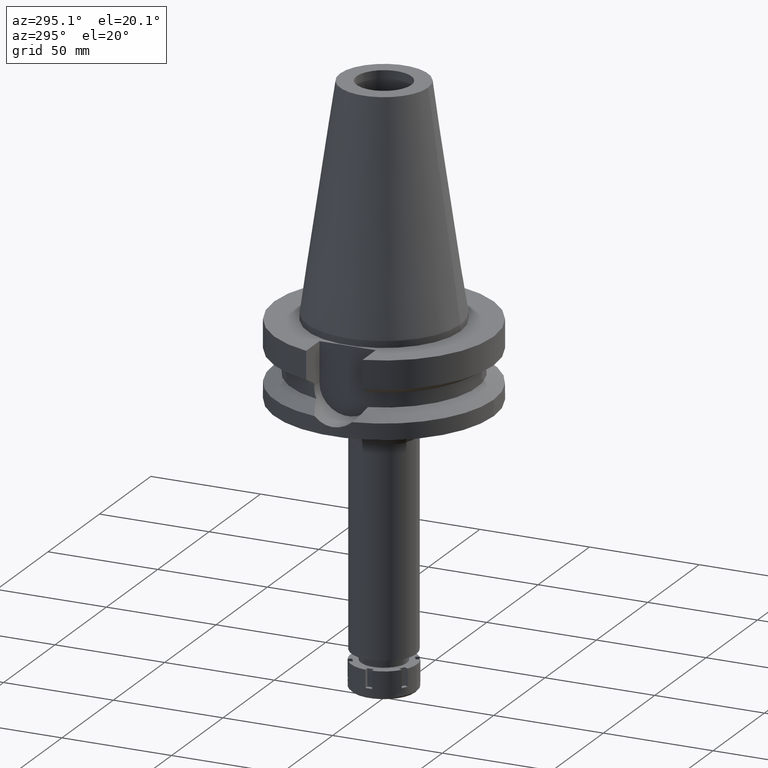
[diagram: clean part render]
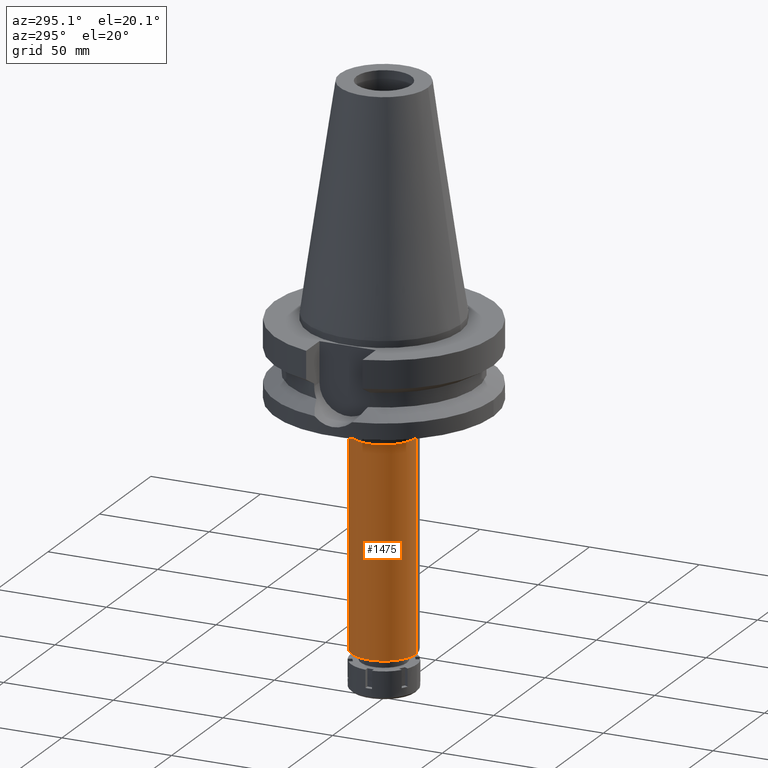
[diagram: same view with one face highlighted and labeled with its STEP entity id]
A machine part, auxiliary view. The second image highlights one B-rep face of the part: STEP entity #1475.
In plain terms, the highlighted cylindrical surface (edge-blend (fillet) strip) has radius 14.75 mm, axis along (0, 0, -1).
Its self-contained STEP definition (entity closure, byte-faithful):
#39 = CIRCLE ( 'NONE', #2115, 14.75000000000000000 ) ;
#101 = AXIS2_PLACEMENT_3D ( 'NONE', #452, #692, #1537 ) ;
#239 = LINE ( 'NONE', #2510, #3024 ) ;
#293 = DIRECTION ( 'NONE',  ( 0.0000000000000000000, 0.0000000000000000000, -1.000000000000000000 ) ) ;
#336 = AXIS2_PLACEMENT_3D ( 'NONE', #1958, #2766, #3091 ) ;
#451 = VECTOR ( 'NONE', #2633, 1000.000000000000000 ) ;
#452 = CARTESIAN_POINT ( 'NONE',  ( 0.0000000000000000000, 0.0000000000000000000, -53.00000000000000000 ) ) ;
#621 = LINE ( 'NONE', #1769, #451 ) ;
#623 = CIRCLE ( 'NONE', #101, 14.75000000000000000 ) ;
#692 = DIRECTION ( 'NONE',  ( 0.0000000000000000000, 0.0000000000000000000, -1.000000000000000000 ) ) ;
#746 = VERTEX_POINT ( 'NONE', #855 ) ;
#855 = CARTESIAN_POINT ( 'NONE',  ( 0.0000000000000000000, 14.75000000000000000, -53.00000000000000000 ) ) ;
#939 = VERTEX_POINT ( 'NONE', #1539 ) ;
#1069 = CYLINDRICAL_SURFACE ( 'NONE', #336, 14.75000000000000000 ) ;
#1475 = ADVANCED_FACE ( 'NONE', ( #2525 ), #1069, .T. ) ;
#1493 = DIRECTION ( 'NONE',  ( 0.0000000000000000000, 0.0000000000000000000, 1.000000000000000000 ) ) ;
#1537 = DIRECTION ( 'NONE',  ( 0.0000000000000000000, -1.000000000000000000, 0.0000000000000000000 ) ) ;
#1539 = CARTESIAN_POINT ( 'NONE',  ( 0.0000000000000000000, -14.75000000000000000, -148.0000000000000000 ) ) ;
#1671 = VERTEX_POINT ( 'NONE', #2987 ) ;
#1769 = CARTESIAN_POINT ( 'NONE',  ( 0.0000000000000000000, 14.75000000000000000, -53.00000000000000000 ) ) ;
#1958 = CARTESIAN_POINT ( 'NONE',  ( 0.0000000000000000000, 2.630418859888999601E-14, 114.7900000000000063 ) ) ;
#2115 = AXIS2_PLACEMENT_3D ( 'NONE', #2310, #1493, #3141 ) ;
#2156 = EDGE_LOOP ( 'NONE', ( #3233, #2371, #2714, #2471 ) ) ;
#2179 = CARTESIAN_POINT ( 'NONE',  ( 0.0000000000000000000, 14.75000000000000000, -148.0000000000000000 ) ) ;
#2232 = EDGE_CURVE ( 'NONE', #746, #3222, #621, .T. ) ;
#2310 = CARTESIAN_POINT ( 'NONE',  ( 0.0000000000000000000, 2.630418859888999601E-14, -148.0000000000000000 ) ) ;
#2371 = ORIENTED_EDGE ( 'NONE', *, *, #2762, .F. ) ;
#2471 = ORIENTED_EDGE ( 'NONE', *, *, #2232, .T. ) ;
#2510 = CARTESIAN_POINT ( 'NONE',  ( 0.0000000000000000000, -14.75000000000000000, -53.00000000000000000 ) ) ;
#2525 = FACE_OUTER_BOUND ( 'NONE', #2156, .T. ) ;
#2604 = EDGE_CURVE ( 'NONE', #1671, #746, #623, .T. ) ;
#2633 = DIRECTION ( 'NONE',  ( 0.0000000000000000000, 0.0000000000000000000, -1.000000000000000000 ) ) ;
#2714 = ORIENTED_EDGE ( 'NONE', *, *, #2604, .T. ) ;
#2762 = EDGE_CURVE ( 'NONE', #1671, #939, #239, .T. ) ;
#2766 = DIRECTION ( 'NONE',  ( 0.0000000000000000000, 0.0000000000000000000, -1.000000000000000000 ) ) ;
#2987 = CARTESIAN_POINT ( 'NONE',  ( 0.0000000000000000000, -14.75000000000000000, -53.00000000000000000 ) ) ;
#3024 = VECTOR ( 'NONE', #293, 1000.000000000000000 ) ;
#3047 = EDGE_CURVE ( 'NONE', #3222, #939, #39, .T. ) ;
#3091 = DIRECTION ( 'NONE',  ( 0.0000000000000000000, -1.000000000000000000, 0.0000000000000000000 ) ) ;
#3141 = DIRECTION ( 'NONE',  ( 0.0000000000000000000, 1.000000000000000000, 0.0000000000000000000 ) ) ;
#3222 = VERTEX_POINT ( 'NONE', #2179 ) ;
#3233 = ORIENTED_EDGE ( 'NONE', *, *, #3047, .T. ) ;